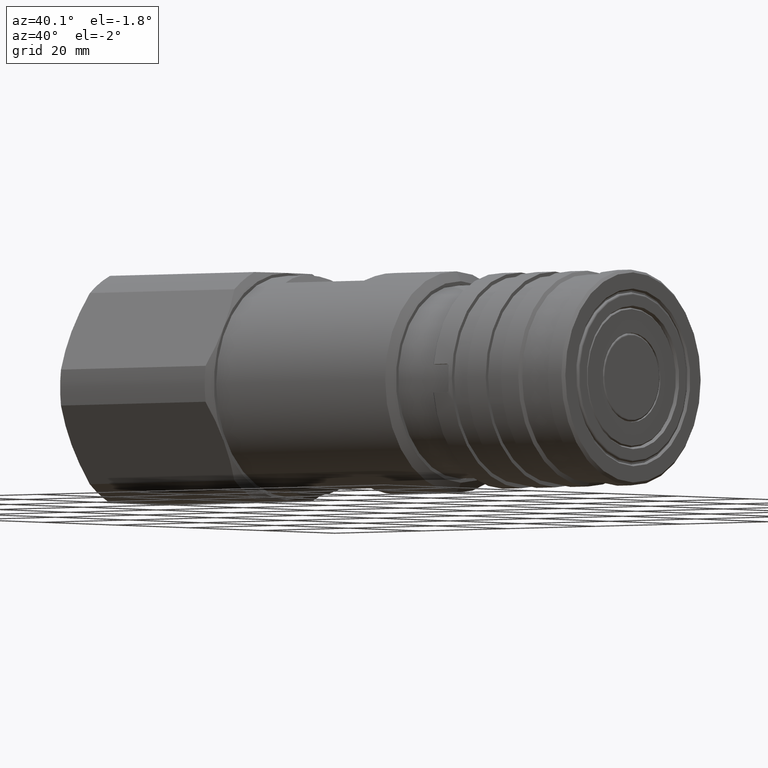
[diagram: clean part render]
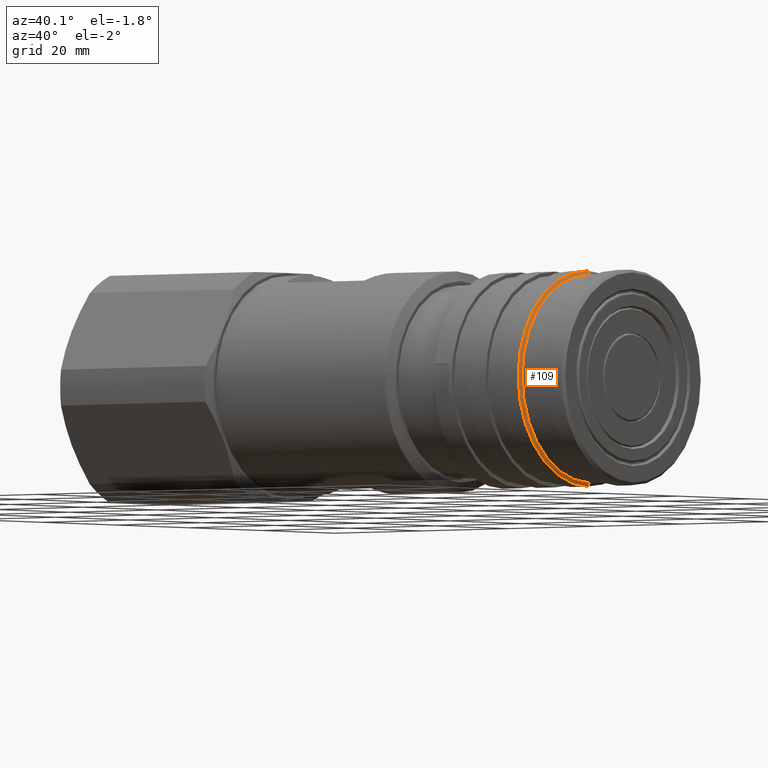
[diagram: same view with one face highlighted and labeled with its STEP entity id]
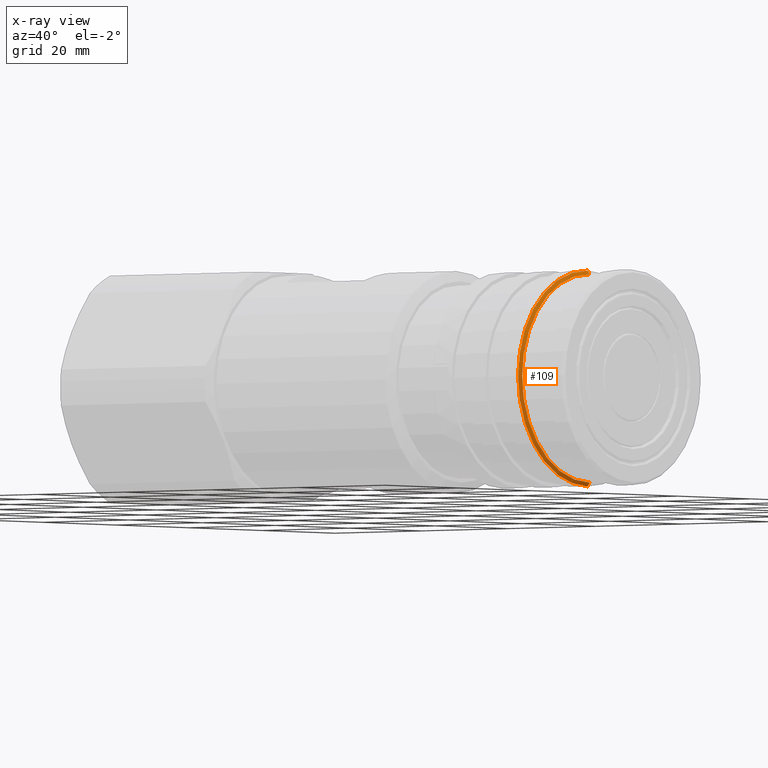
[diagram: x-ray of the same camera — body ghosted, the highlighted face saturated]
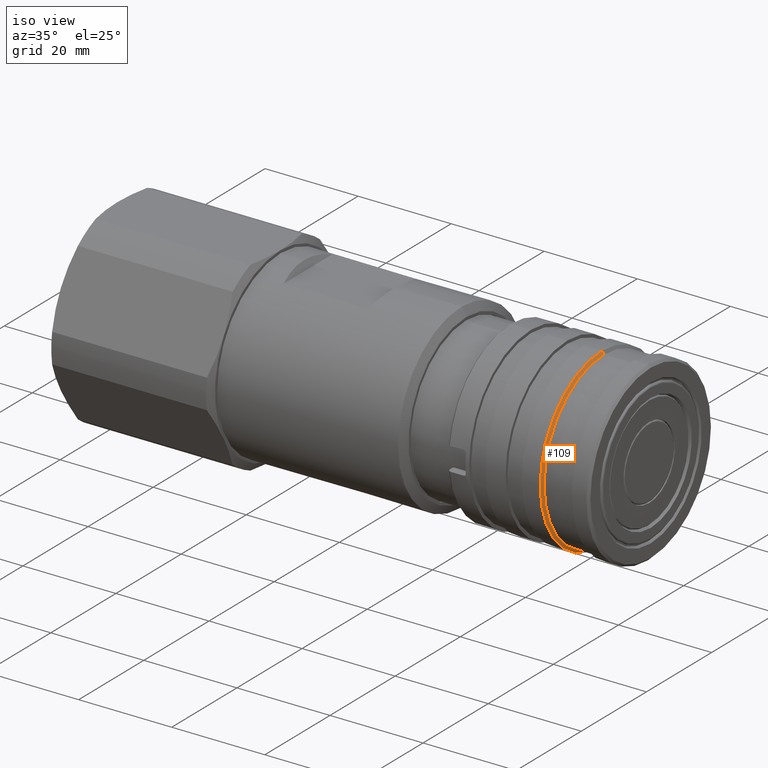
[diagram: same view with one face highlighted and labeled with its STEP entity id]
A machine part, auxiliary view. The second image highlights one B-rep face of the part: STEP entity #109.
The next image is the same camera in x-ray: the body ghosted, the highlighted face saturated — about 0% of this face is hidden behind the body in this view.
A second angle (iso view) of the same face is appended — the face is thin or edge-on in the first view.
In plain terms, the highlighted conical surface has half-angle 60 deg.
Its self-contained STEP definition (entity closure, byte-faithful):
#55 = CARTESIAN_POINT ( 'NONE',  ( 42.47472232502674700, 0.0000000000000000000, 19.00000000000000000 ) ) ;
#57 = DIRECTION ( 'NONE',  ( -0.4999999999999957300, 0.0000000000000000000, 0.8660254037844411500 ) ) ;
#109 = ADVANCED_FACE ( 'NONE', ( #2167 ), #2168, .T. ) ;
#515 = CARTESIAN_POINT ( 'NONE',  ( 42.85000000000000100, 0.0000000000000000000, 18.35000000000000100 ) ) ;
#519 = CARTESIAN_POINT ( 'NONE',  ( 42.47472232502674700, 2.326828918379971000E-015, -19.00000000000000000 ) ) ;
#521 = CARTESIAN_POINT ( 'NONE',  ( 42.85000000000000100, 2.287027897407682000E-015, -18.35000000000000100 ) ) ;
#529 = CARTESIAN_POINT ( 'NONE',  ( 42.47472232502674700, 0.0000000000000000000, 19.00000000000000000 ) ) ;
#647 = CARTESIAN_POINT ( 'NONE',  ( 42.47472232502674700, 0.0000000000000000000, 0.0000000000000000000 ) ) ;
#648 = DIRECTION ( 'NONE',  ( -1.000000000000000000, -0.0000000000000000000, -0.0000000000000000000 ) ) ;
#649 = DIRECTION ( 'NONE',  ( 0.0000000000000000000, 0.0000000000000000000, 1.000000000000000000 ) ) ;
#706 = CARTESIAN_POINT ( 'NONE',  ( 42.85000000000000100, 0.0000000000000000000, 0.0000000000000000000 ) ) ;
#707 = DIRECTION ( 'NONE',  ( -1.000000000000000000, -0.0000000000000000000, -0.0000000000000000000 ) ) ;
#708 = DIRECTION ( 'NONE',  ( 0.0000000000000000000, 0.0000000000000000000, 1.000000000000000000 ) ) ;
#958 = CARTESIAN_POINT ( 'NONE',  ( 42.47472232502674700, 2.326828918379971000E-015, -19.00000000000000000 ) ) ;
#959 = DIRECTION ( 'NONE',  ( -0.4999999999999957300, 1.060575238724910100E-016, -0.8660254037844411500 ) ) ;
#1362 = EDGE_CURVE ( 'NONE', #1789, #1803, #2680, .T. ) ;
#1539 = LINE ( 'NONE', #958, #1541 ) ;
#1541 = VECTOR ( 'NONE', #959, 999.9999999999998900 ) ;
#1575 = ORIENTED_EDGE ( 'NONE', *, *, #2627, .F. ) ;
#1590 = ORIENTED_EDGE ( 'NONE', *, *, #1931, .T. ) ;
#1602 = ORIENTED_EDGE ( 'NONE', *, *, #1362, .T. ) ;
#1629 = ORIENTED_EDGE ( 'NONE', *, *, #1913, .F. ) ;
#1789 = VERTEX_POINT ( 'NONE', #515 ) ;
#1793 = VERTEX_POINT ( 'NONE', #519 ) ;
#1795 = VERTEX_POINT ( 'NONE', #521 ) ;
#1803 = VERTEX_POINT ( 'NONE', #529 ) ;
#1913 = EDGE_CURVE ( 'NONE', #1793, #1803, #2854, .T. ) ;
#1931 = EDGE_CURVE ( 'NONE', #1795, #1789, #2876, .T. ) ;
#2012 = EDGE_LOOP ( 'NONE', ( #1575, #1590, #1602, #1629 ) ) ;
#2167 = FACE_OUTER_BOUND ( 'NONE', #2012, .T. ) ;
#2168 = CONICAL_SURFACE ( 'NONE', #2386, 19.00000000000000000, 1.047197551196602700 ) ;
#2386 = AXIS2_PLACEMENT_3D ( 'NONE', #3046, #3047, #3048 ) ;
#2559 = AXIS2_PLACEMENT_3D ( 'NONE', #647, #648, #649 ) ;
#2564 = AXIS2_PLACEMENT_3D ( 'NONE', #706, #707, #708 ) ;
#2627 = EDGE_CURVE ( 'NONE', #1795, #1793, #1539, .T. ) ;
#2680 = LINE ( 'NONE', #55, #2681 ) ;
#2681 = VECTOR ( 'NONE', #57, 999.9999999999998900 ) ;
#2854 = CIRCLE ( 'NONE', #2559, 19.00000000000000000 ) ;
#2876 = CIRCLE ( 'NONE', #2564, 18.35000000000000100 ) ;
#3046 = CARTESIAN_POINT ( 'NONE',  ( 42.47472232502674700, 0.0000000000000000000, 0.0000000000000000000 ) ) ;
#3047 = DIRECTION ( 'NONE',  ( -1.000000000000000000, -0.0000000000000000000, -0.0000000000000000000 ) ) ;
#3048 = DIRECTION ( 'NONE',  ( 0.0000000000000000000, 0.0000000000000000000, 1.000000000000000000 ) ) ;